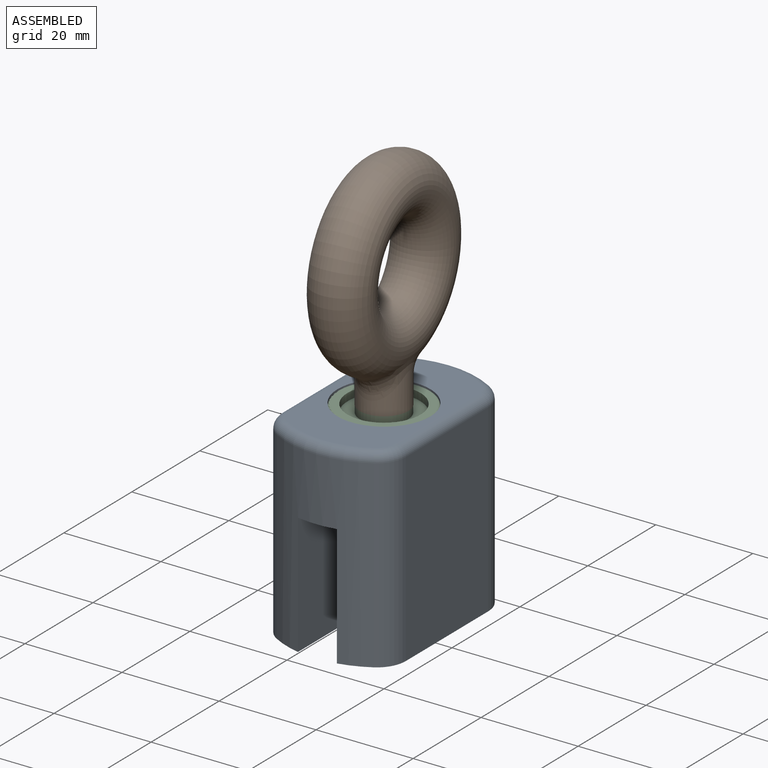
[diagram: assembled view]
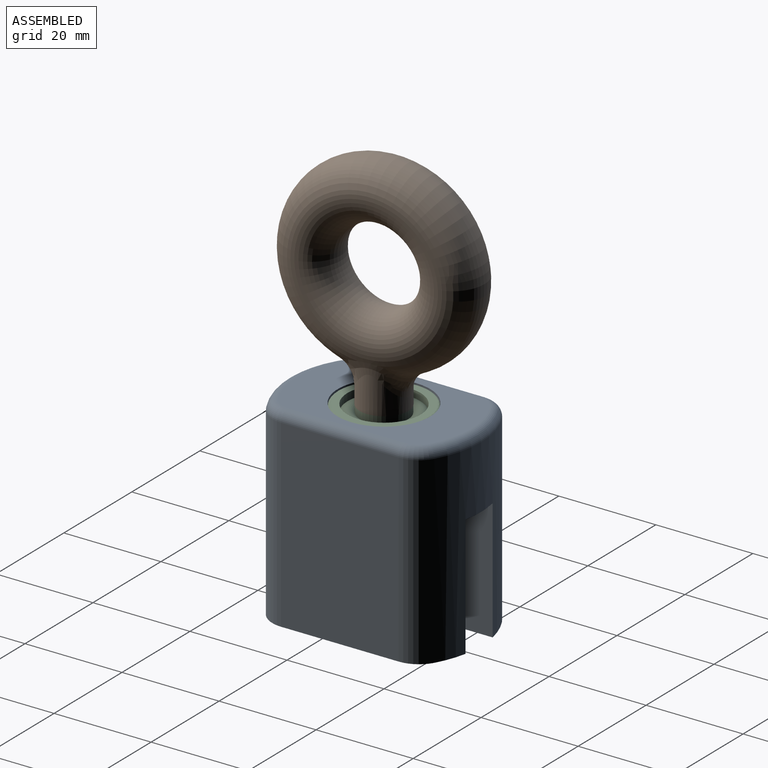
[diagram: assembled view, second angle]
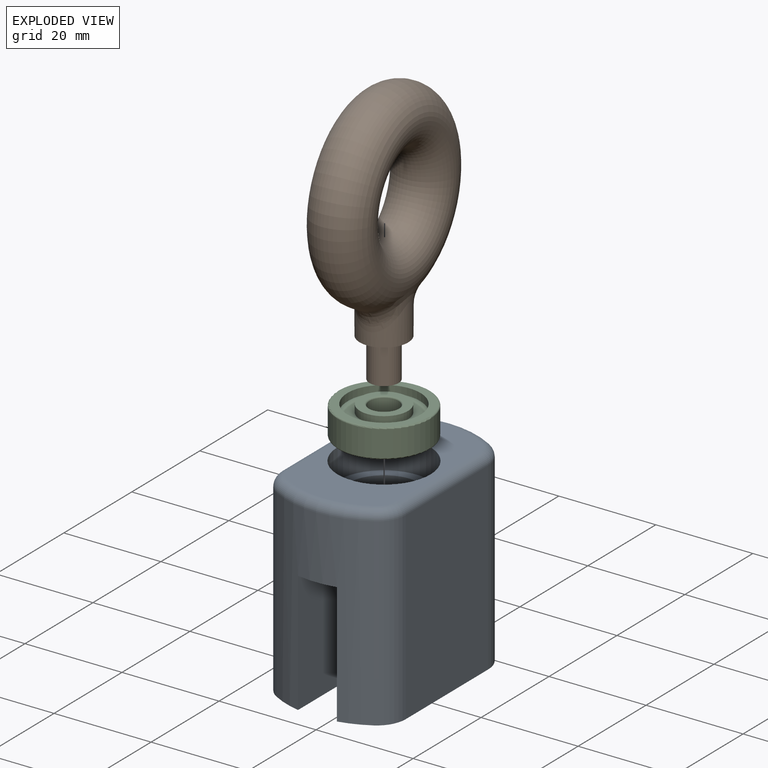
[diagram: exploded view]
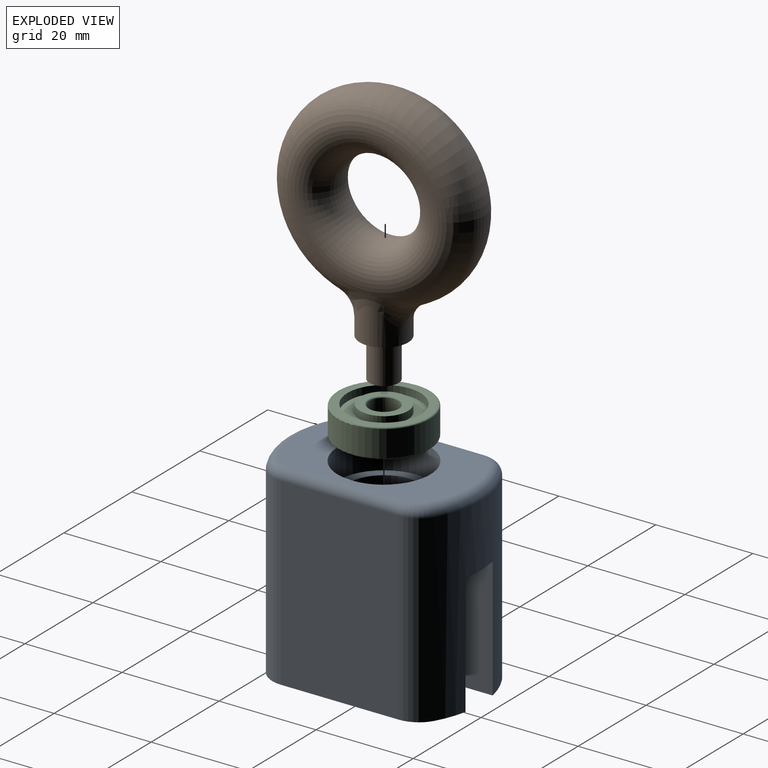
[diagram: exploded view, second angle]
ASSEMBLY  parts=3 mates=2
PART A: 28 faces, bbox 27x43.3x40 mm
  f0: plane 39.19x9mm, normal (0,0,-1), area 286.5mm2, adj f1,f2,f4,f9,f12,f14,f16,f17
  f1: cylinder r=20mm len=38mm, axis (0,0,1), area 594.5mm2, adj f0,f7,f8,f9,f10,f16,f18,f24
  f2: cylinder r=20mm len=38mm, axis (0,0,1), area 594.5mm2, adj f0,f7,f11,f12,f13,f17,f19,f23
  f3: plane 36x22mm, normal (0,0,1), area 450mm2, adj f5,f20,f21,f22,f23,f24,f25,f26
  f4: cylinder r=7.55mm len=33.8mm, axis (0,0,1), area 1181.8mm2, adj f0,f6,f7,f8,f9,f10,f11,f12
  f5: cylinder r=9.55mm len=19.1mm, axis (0,0,1), area 372mm2, adj f3,f6
  f6: plane 19.1x19.1mm, normal (0,0,1), area 107.4mm2, adj f4,f5
  f7: plane 39.19x9mm, normal (0,0,-1), area 286.5mm2, adj f1,f2,f4,f8,f13,f15,f18,f19
  f8: plane 25x13.19mm, normal (-1,0,0), area 329.8mm2, adj f1,f4,f7,f10
  f9: plane 25x13.19mm, normal (1,0,0), area 329.8mm2, adj f0,f1,f4,f10
  f10: plane 13.6x8mm, normal (0,0,-1), area 101.5mm2, adj f1,f4,f8,f9
  f11: plane 13.6x8mm, normal (0,0,-1), area 101.5mm2, adj f2,f4,f12,f13
  f12: plane 25x13.19mm, normal (1,0,0), area 329.8mm2, adj f0,f2,f4,f11
  f13: plane 25x13.19mm, normal (-1,0,0), area 329.8mm2, adj f2,f4,f7,f11
  f14: plane 38x24.25mm, normal (-1,0,0), area 921.5mm2, adj f0,f16,f17,f27
  f15: plane 38x24.25mm, normal (1,0,0), area 921.5mm2, adj f7,f18,f19,f20
  f16: cylinder r=6mm len=38mm, axis (0,0,1), area 238.8mm2, adj f0,f1,f14,f26
  f17: cylinder r=6mm len=38mm, axis (0,0,1), area 238.8mm2, adj f0,f2,f14,f25
  f18: cylinder r=6mm len=38mm, axis (0,0,1), area 238.8mm2, adj f1,f7,f15,f22
  f19: cylinder r=6mm len=38mm, axis (0,0,1), area 238.8mm2, adj f2,f7,f15,f21
  f20: cylinder r=2mm len=24.25mm, axis (0,-1,0), area 76.2mm2, adj f3,f15,f21,f22
  f21: torus R=4mm, axis (0,0,-1), area 17.3mm2, adj f3,f19,f20,f23
  f22: torus R=4mm, axis (0,0,-1), area 17.3mm2, adj f3,f18,f20,f24
  f23: torus R=18mm, axis (0,0,-1), area 63.4mm2, adj f2,f3,f21,f25
  f24: torus R=18mm, axis (0,0,-1), area 63.4mm2, adj f1,f3,f22,f26
  f25: torus R=4mm, axis (0,0,-1), area 17.3mm2, adj f3,f17,f23,f27
  f26: torus R=4mm, axis (0,0,-1), area 17.3mm2, adj f3,f16,f24,f27
  f27: cylinder r=2mm len=24.25mm, axis (0,1,0), area 76.2mm2, adj f3,f14,f25,f26
PART B: 6 faces, bbox 11x43.3x55.9 mm
  f0: cylinder r=3mm len=8.1mm, axis (0,0,-1), area 152.7mm2, adj f1,f5
  f1: plane 10x10mm, normal (0,0,-1), area 50.3mm2, adj f0,f2
  f2: cylinder r=5mm len=10mm, axis (0,0,-1), area 147.6mm2, adj f1,f4
  f3: torus R=14mm, axis (-1,0,0), area 3135.4mm2, adj f4
  f4: bspline ~16.94x11mm, area 180.2mm2, adj f2,f3
  f5: plane 6x6mm, normal (0,0,-1), area 28.3mm2, adj f0
PART C: 16 faces, bbox 6x20.6x20.6 mm
  f0: torus R=6.25mm, axis (-1,0,0), area 111.8mm2, adj f1,f9
  f1: cylinder r=4.95mm len=9.9mm, axis (1,0,0), area 48.1mm2, adj f0,f3
  f2: cylinder r=4.95mm len=9.9mm, axis (1,0,0), area 48.1mm2, adj f7,f8
  f3: plane 9.9x9.9mm, normal (1,0,0), area 42.8mm2, adj f1,f4
  f4: torus R=3.3mm, axis (1,0,0), area 9.2mm2, adj f3,f5
  f5: cylinder r=3mm len=6mm, axis (1,0,0), area 101.8mm2, adj f4,f6
  f6: torus R=3.3mm, axis (1,0,0), area 9.2mm2, adj f5,f7
  f7: plane 9.9x9.9mm, normal (-1,0,0), area 42.8mm2, adj f2,f6
  f8: torus R=6.25mm, axis (-1,0,0), area 111.8mm2, adj f2,f10
  f9: cylinder r=7.55mm len=15.1mm, axis (1,0,0), area 73.4mm2, adj f0,f11
  f10: cylinder r=7.55mm len=15.1mm, axis (1,0,0), area 73.4mm2, adj f8,f15
  f11: plane 18.4x18.4mm, normal (1,0,0), area 86.8mm2, adj f9,f12
  f12: torus R=9.2mm, axis (1,0,0), area 27.8mm2, adj f11,f13
  f13: cylinder r=9.5mm len=19mm, axis (1,0,0), area 322.3mm2, adj f12,f14
  f14: torus R=9.2mm, axis (1,0,0), area 27.8mm2, adj f13,f15
  f15: plane 18.4x18.4mm, normal (-1,0,0), area 86.8mm2, adj f10,f14
PLACE A at identity fixed
PLACE B rot(axis=(0,0,-1),175.2deg) t=(0,0,0)mm
PLACE C rot(axis=(0.71,0,-0.71),180deg) t=(0,0,-3.2)mm
MATE fastened C.f0 <-> A.f4  axis (0,0,-1) through (0,0,-6.2)mm
MATE revolute C.f0 <-> B.f0  axis (0,0,1) through (0,0,-0.2)mm
